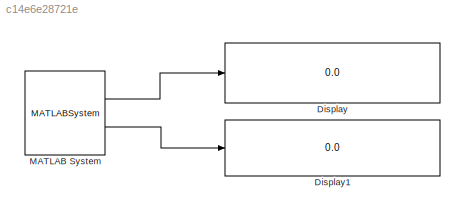
MODEL slx_c14e6e28721e
KIND model
CONFIG AbsTol = auto
CONFIG EnableMultiTasking = on
CONFIG FixedStep = auto
CONFIG MaxStep = auto
CONFIG MinStep = auto
CONFIG RelTol = 1e-3
CONFIG SampleTimeConstraint = Unconstrained
CONFIG Solver = FixedStepAuto
CONFIG SolverName = FixedStepAuto
CONFIG StartTime = 0.0
CONFIG StopTime = inf
BLOCK [Display] Display
  Decimation = 2
  Format = long
  Ports = [1]
BLOCK [Display] Display1
  Decimation = 2
  Format = long
  Ports = [1]
BLOCK [MATLABSystem] MATLAB System
  MaskDisplay = disp('LSM303');\nport_label('output',1,'accel');\nport_label('output',2,'mag');
  MaskType = LSM303
  Ports = [0, 2]
  SimulateUsing = Code generation
  System = LSM303
LINE MATLAB System:1 -> Display:1
LINE MATLAB System:2 -> Display1:1
